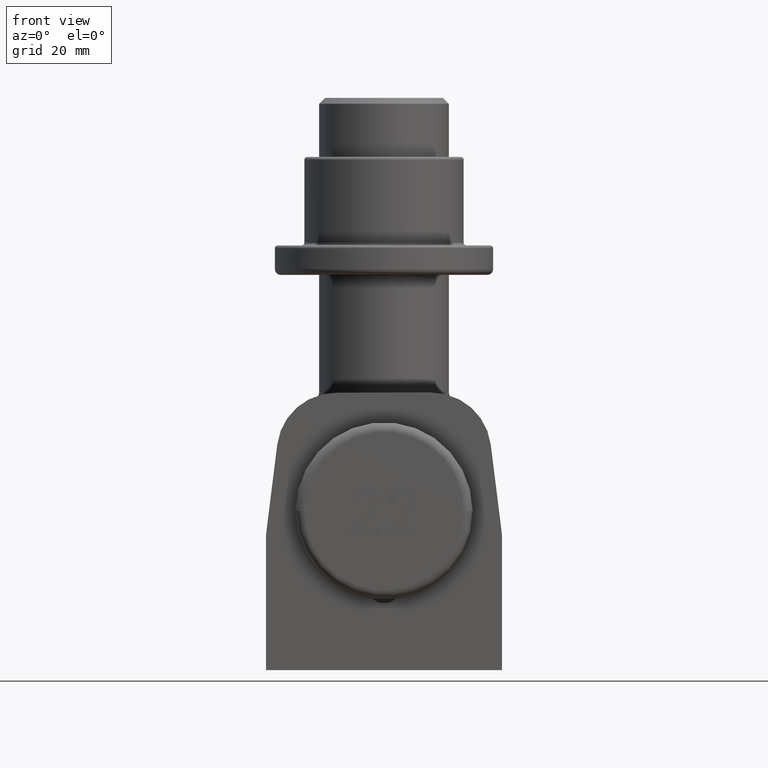
[diagram: clean part render]
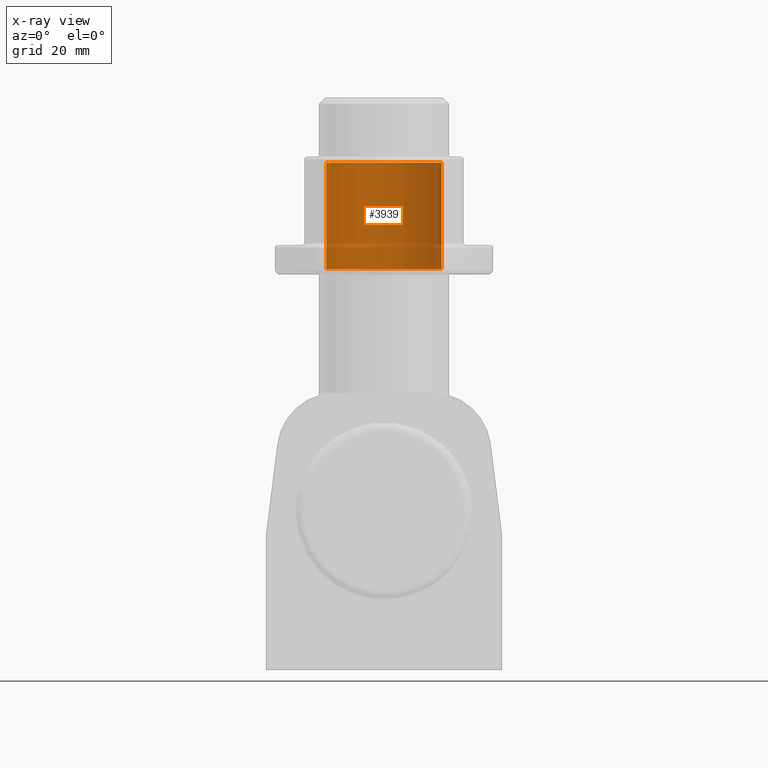
[diagram: x-ray — body ghosted, one internal face saturated and labeled with its STEP entity id]
A machine part, front view, then the same camera in x-ray: the body is ghosted and one INTERNAL B-rep face — a face not visible from any outside direction — is saturated and labeled: STEP entity #3939.
In plain terms, the highlighted cylindrical surface (partial cylindrical patch) has radius 9.75 mm, axis along (0, 0, 1).
Its self-contained STEP definition (entity closure, byte-faithful):
#283 = CARTESIAN_POINT ( 'NONE',  ( 0.0000000000000000000, 0.0000000000000000000, 1.000000000000014700 ) ) ;
#566 = AXIS2_PLACEMENT_3D ( 'NONE', #283, #8868, #11690 ) ;
#649 = EDGE_CURVE ( 'NONE', #14253, #5687, #12839, .T. ) ;
#1210 = DIRECTION ( 'NONE',  ( 1.000000000000000000, 0.0000000000000000000, 0.0000000000000000000 ) ) ;
#2064 = FACE_OUTER_BOUND ( 'NONE', #6310, .T. ) ;
#2463 = DIRECTION ( 'NONE',  ( 0.0000000000000000000, 0.0000000000000000000, 1.000000000000000000 ) ) ;
#2728 = CARTESIAN_POINT ( 'NONE',  ( 0.0000000000000000000, 0.0000000000000000000, 18.99999999999998900 ) ) ;
#3279 = CARTESIAN_POINT ( 'NONE',  ( -9.749999999999991100, 1.194030629168668300E-015, 1.000000000000014700 ) ) ;
#3387 = AXIS2_PLACEMENT_3D ( 'NONE', #3524, #8242, #10745 ) ;
#3430 = CIRCLE ( 'NONE', #15101, 9.749999999999991100 ) ;
#3524 = CARTESIAN_POINT ( 'NONE',  ( 0.0000000000000000000, 0.0000000000000000000, 20.00000000000000400 ) ) ;
#3549 = EDGE_CURVE ( 'NONE', #12727, #11826, #3430, .T. ) ;
#3554 = ORIENTED_EDGE ( 'NONE', *, *, #3549, .T. ) ;
#3939 = ADVANCED_FACE ( 'NONE', ( #2064 ), #15606, .F. ) ;
#4268 = LINE ( 'NONE', #8869, #8654 ) ;
#4812 = CARTESIAN_POINT ( 'NONE',  ( 9.749999999999991100, 0.0000000000000000000, 18.99999999999998900 ) ) ;
#5687 = VERTEX_POINT ( 'NONE', #6267 ) ;
#6267 = CARTESIAN_POINT ( 'NONE',  ( 9.749999999999991100, 0.0000000000000000000, 1.000000000000014700 ) ) ;
#6310 = EDGE_LOOP ( 'NONE', ( #10474, #10739, #13827, #3554 ) ) ;
#7562 = DIRECTION ( 'NONE',  ( -0.0000000000000000000, -0.0000000000000000000, 1.000000000000000000 ) ) ;
#8242 = DIRECTION ( 'NONE',  ( -0.0000000000000000000, -0.0000000000000000000, 1.000000000000000000 ) ) ;
#8326 = EDGE_CURVE ( 'NONE', #14253, #11826, #12022, .T. ) ;
#8654 = VECTOR ( 'NONE', #8763, 1000.000000000000000 ) ;
#8763 = DIRECTION ( 'NONE',  ( -0.0000000000000000000, -0.0000000000000000000, 1.000000000000000000 ) ) ;
#8868 = DIRECTION ( 'NONE',  ( -0.0000000000000000000, -0.0000000000000000000, -1.000000000000000000 ) ) ;
#8869 = CARTESIAN_POINT ( 'NONE',  ( 9.749999999999991100, 0.0000000000000000000, 20.00000000000000400 ) ) ;
#9770 = VECTOR ( 'NONE', #7562, 1000.000000000000000 ) ;
#10474 = ORIENTED_EDGE ( 'NONE', *, *, #8326, .F. ) ;
#10549 = CARTESIAN_POINT ( 'NONE',  ( -9.749999999999991100, 1.194030629168668300E-015, 18.99999999999998900 ) ) ;
#10739 = ORIENTED_EDGE ( 'NONE', *, *, #649, .T. ) ;
#10745 = DIRECTION ( 'NONE',  ( 1.000000000000000000, 0.0000000000000000000, 0.0000000000000000000 ) ) ;
#11690 = DIRECTION ( 'NONE',  ( 1.000000000000000000, 0.0000000000000000000, 0.0000000000000000000 ) ) ;
#11826 = VERTEX_POINT ( 'NONE', #10549 ) ;
#12022 = LINE ( 'NONE', #14422, #9770 ) ;
#12727 = VERTEX_POINT ( 'NONE', #4812 ) ;
#12839 = CIRCLE ( 'NONE', #566, 9.749999999999991100 ) ;
#13827 = ORIENTED_EDGE ( 'NONE', *, *, #14451, .T. ) ;
#14253 = VERTEX_POINT ( 'NONE', #3279 ) ;
#14422 = CARTESIAN_POINT ( 'NONE',  ( -9.749999999999991100, 1.194030629168668300E-015, 20.00000000000000400 ) ) ;
#14451 = EDGE_CURVE ( 'NONE', #5687, #12727, #4268, .T. ) ;
#15101 = AXIS2_PLACEMENT_3D ( 'NONE', #2728, #2463, #1210 ) ;
#15606 = CYLINDRICAL_SURFACE ( 'NONE', #3387, 9.749999999999991100 ) ;